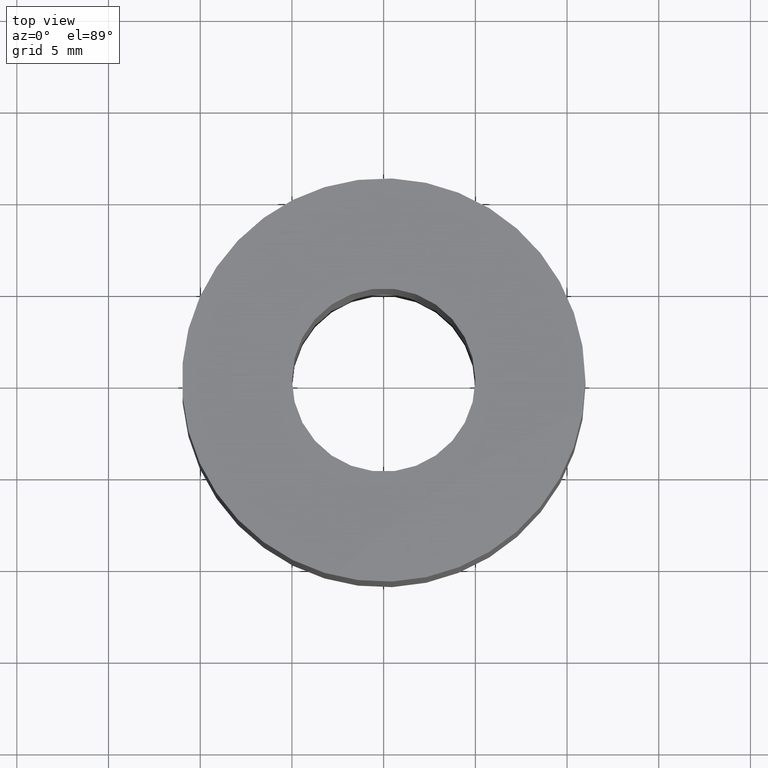
[diagram: clean part render]
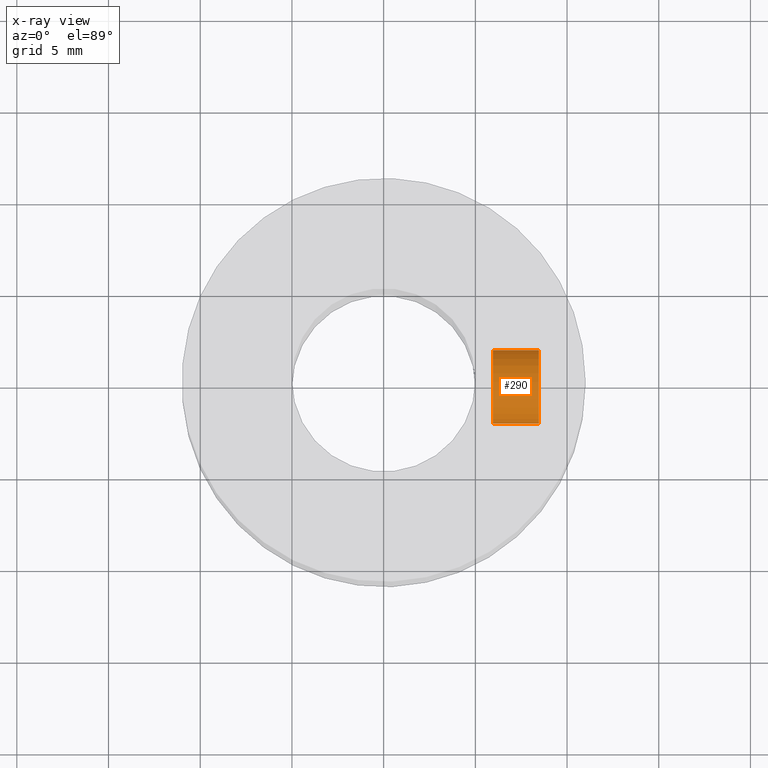
[diagram: x-ray — body ghosted, one internal face saturated and labeled with its STEP entity id]
A machine part, top view, then the same camera in x-ray: the body is ghosted and one INTERNAL B-rep face — a face not visible from any outside direction — is saturated and labeled: STEP entity #290.
In plain terms, the highlighted cylindrical surface (bore or boss wall) has radius 2 mm, axis along (1, 0, 0).
Its self-contained STEP definition (entity closure, byte-faithful):
#290 = ADVANCED_FACE( '', ( #364, #365 ), #366, .T. );
#364 = FACE_OUTER_BOUND( '', #456, .T. );
#365 = FACE_OUTER_BOUND( '', #457, .T. );
#366 = CYLINDRICAL_SURFACE( '', #458, 2.00000000000000 );
#456 = EDGE_LOOP( '', ( #618 ) );
#457 = EDGE_LOOP( '', ( #619 ) );
#458 = AXIS2_PLACEMENT_3D( '', #620, #621, #622 );
#618 = ORIENTED_EDGE( '', *, *, #718, .T. );
#619 = ORIENTED_EDGE( '', *, *, #739, .F. );
#620 = CARTESIAN_POINT( '', ( 4.96205955850783, 0.000000000000000, -21.5000000000000 ) );
#621 = DIRECTION( '', ( 1.00000000000000, 0.000000000000000, -0.000000000000000 ) );
#622 = DIRECTION( '', ( 0.000000000000000, -1.00000000000000, 0.000000000000000 ) );
#718 = EDGE_CURVE( '', #790, #790, #791, .T. );
#739 = EDGE_CURVE( '', #824, #824, #825, .T. );
#790 = VERTEX_POINT( '', #1102 );
#791 = CIRCLE( '', #1103, 2.00000000000000 );
#824 = VERTEX_POINT( '', #1178 );
#825 = CIRCLE( '', #1179, 2.00000000000000 );
#1102 = CARTESIAN_POINT( '', ( 8.46205955850783, -2.00000000000000, -21.5000000000000 ) );
#1103 = AXIS2_PLACEMENT_3D( '', #1288, #1289, #1290 );
#1178 = CARTESIAN_POINT( '', ( 5.96205955850783, -2.00000000000000, -21.5000000000000 ) );
#1179 = AXIS2_PLACEMENT_3D( '', #1306, #1307, #1308 );
#1288 = CARTESIAN_POINT( '', ( 8.46205955850783, 0.000000000000000, -21.5000000000000 ) );
#1289 = DIRECTION( '', ( -1.00000000000000, -0.000000000000000, 0.000000000000000 ) );
#1290 = DIRECTION( '', ( 0.000000000000000, -1.00000000000000, 0.000000000000000 ) );
#1306 = CARTESIAN_POINT( '', ( 5.96205955850783, 0.000000000000000, -21.5000000000000 ) );
#1307 = DIRECTION( '', ( -1.00000000000000, -0.000000000000000, 0.000000000000000 ) );
#1308 = DIRECTION( '', ( 0.000000000000000, -1.00000000000000, 0.000000000000000 ) );